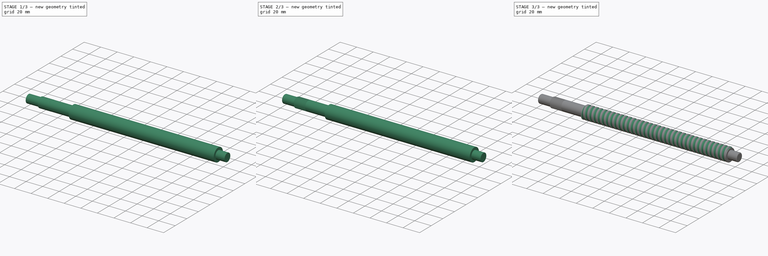
[diagram: build sequence overview — one tinted view per stage of 3, left to right]
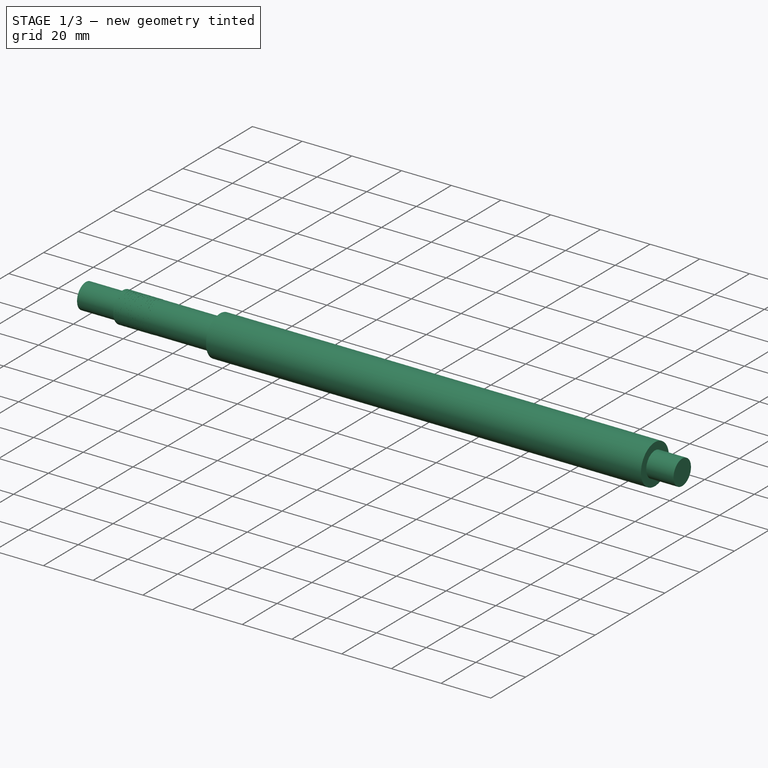
[diagram: stage 1 of 3 — iso view after this stage's code; geometry added in this stage tinted green]
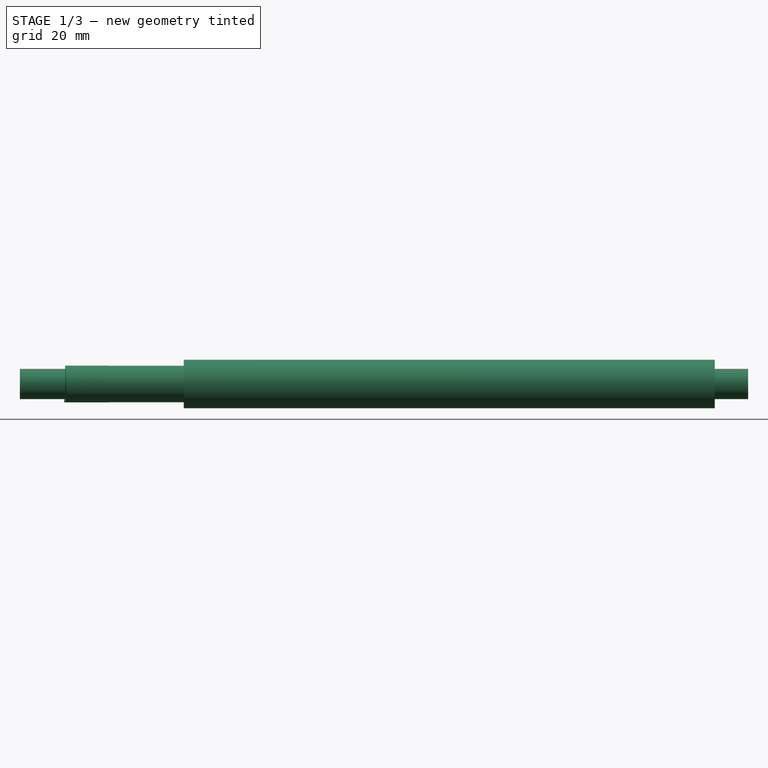
[diagram: stage 1 of 3 — front view after this stage's code; geometry added in this stage tinted green]
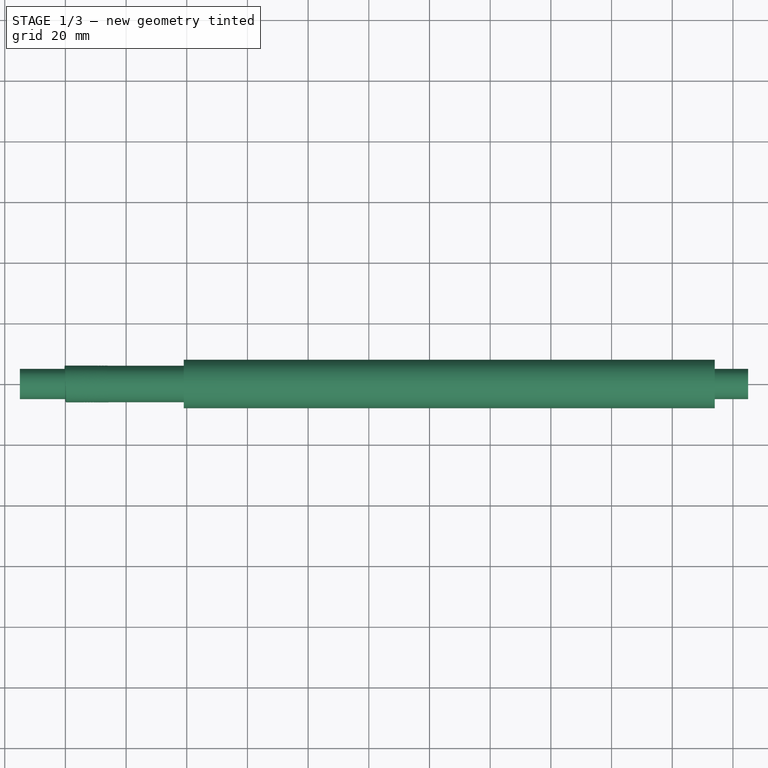
[diagram: stage 1 of 3 — top view after this stage's code; geometry added in this stage tinted green]
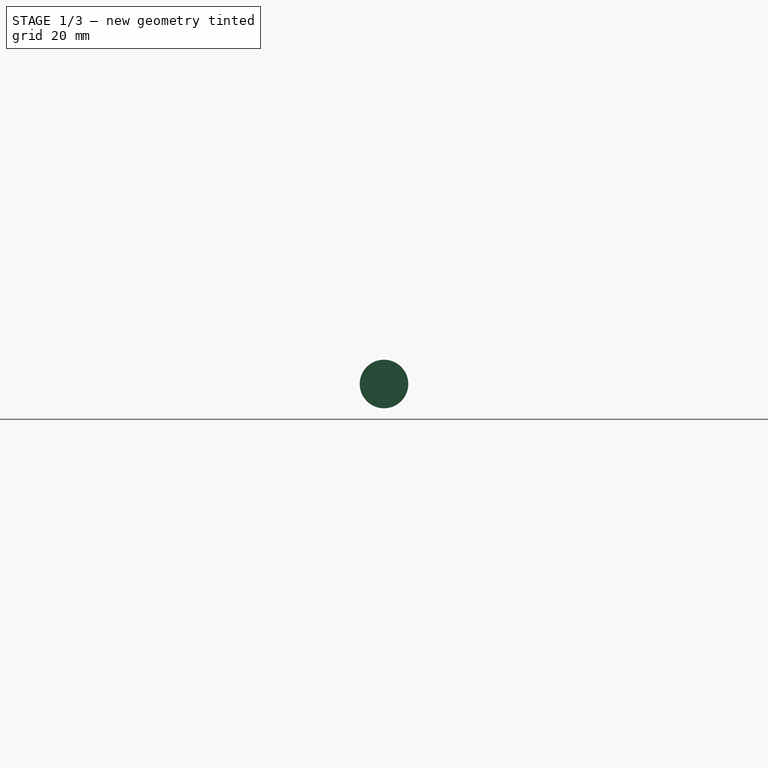
[diagram: stage 1 of 3 — right view after this stage's code; geometry added in this stage tinted green]
FCSTD DOCUMENT  (FreeCAD 0.16R5455 (Git))
Label: RM1605-ball-screw-240mm
License: CreativeCommons Attribution-ShareAlike
LicenseURL: http://creativecommons.org/licenses/by-sa/4.0/
objects: Sketcher::SketchObject×3, PartDesign::Fillet×3, Part::Feature×3, Part::Sweep×2, Part::Cut×2, PartDesign::Revolution×1
note: 15 computed .brp shape members not serialized (recipe doc carries the construction recipe); baked Part::Feature solids carry a one-line shape summary decoded from their .brp

FEATURE [Sketcher::SketchObject] Sketch
  Placement = pos=(-15,0,0) rot=(0,0,1;0rad)
  sketch-geometry (10):
    g0: LineSegment StartX=0 StartY=0 StartZ=0 EndX=0 EndY=5 EndZ=0
    g1: LineSegment StartX=0 StartY=5 StartZ=0 EndX=15 EndY=5 EndZ=0
    g2: LineSegment StartX=15 StartY=5 StartZ=0 EndX=15 EndY=6 EndZ=0
    g3: LineSegment StartX=15 StartY=6 StartZ=0 EndX=54 EndY=6 EndZ=0
    g4: LineSegment StartX=54 StartY=6 StartZ=0 EndX=54 EndY=8 EndZ=0
    g5: LineSegment StartX=54 StartY=8 StartZ=0 EndX=229 EndY=8 EndZ=0
    g6: LineSegment StartX=229 StartY=8 StartZ=0 EndX=229 EndY=5 EndZ=0
    g7: LineSegment StartX=229 StartY=5 StartZ=0 EndX=240 EndY=5 EndZ=0
    g8: LineSegment StartX=240 StartY=5 StartZ=0 EndX=240 EndY=0 EndZ=0
    g9: LineSegment StartX=240 StartY=0 StartZ=0 EndX=0 EndY=0 EndZ=0
  constraints (29):
    c: Coincident(g0,g1)
    c: Coincident(g1,g2)
    c: Coincident(g2,g3)
    c: Coincident(g3,g4)
    c: Coincident(g4,g5)
    c: Coincident(g5,g6)
    c: Coincident(g6,g7)
    c: Coincident(g7,g8)
    c: Coincident(g8,g9)
    c: Coincident(g9,g-1)
    c: Coincident(g0,g-1)
    c: Vertical(g0)
    c: Horizontal(g1)
    c: DistanceY(g-1,g0) = 5
    c: DistanceX(g0,g1) = 15
    c: Vertical(g2)
    c: Horizontal(g3)
    c: DistanceX(g3) = 39
    c: Vertical(g4)
    c: Horizontal(g5)
    c: DistanceY(g-1,g3) = 6
    c: Vertical(g8)
    c: Horizontal(g7)
    c: Vertical(g6)
    c: Horizontal(g9)
    c: DistanceY(g-1,g4) = 8
    c: DistanceX(g7) = 11
    c: DistanceY(g8) = -5
    c: DistanceX(g9) = -240
FEATURE [PartDesign::Revolution] Revolution
  Angle = 360
  Axis = (1,0,0)
  Base = (-15,0,0)
  Placement = pos=(-15,0,0) rot=(0,0,1;0rad)
  ReferenceAxis = -> Sketch [H_Axis]
  Sketch = -> Sketch
FEATURE [PartDesign::Fillet] Fillet
  Base = -> Revolution [Edge4]
  Placement = pos=(-15,0,0) rot=(0,0,1;0rad)
  Radius = 0.5
FEATURE [Sketcher::SketchObject] Sketch001
  Placement = pos=(0,0,0) rot=(1,0,0;1.5708rad)
  sketch-geometry (4):
    g0: LineSegment StartX=-0.125 StartY=-5.45 StartZ=0 EndX=-0.47141 EndY=-6.05 EndZ=0
    g1: LineSegment StartX=-0.47141 StartY=-6.05 StartZ=0 EndX=0.47141 EndY=-6.05 EndZ=0
    g2: LineSegment StartX=0.47141 StartY=-6.05 StartZ=0 EndX=0.125 EndY=-5.45 EndZ=0
    g3: LineSegment StartX=0.125 StartY=-5.45 StartZ=0 EndX=-0.125 EndY=-5.45 EndZ=0
  constraints (12):
    c: Coincident(g0,g1)
    c: Coincident(g1,g2)
    c: Coincident(g2,g3)
    c: Coincident(g0,g3)
    c: Horizontal(g3)
    c: Horizontal(g1)
    c: DistanceY(g-1,g0) = -5.45
    c: Symmetric(g0,g2,g-2)
    c: Symmetric(g0,g1,g-2)
    c: DistanceX(g3) = -0.25
    c: Angle(g0,g2) = 1.0472
    c: DistanceY(g0,g0) = -0.6
FEATURE [Part::Feature] Shape001  label="M12x1-14"
  Placement = pos=(0,0,0) rot=(0,1,0;1.5708rad)
  shape: bbox 14 x 10.9 x 10.9 mm, 0 faces, 0 solids (baked)
FEATURE [Part::Sweep] Sweep
  Frenet = true
  Sections = -> [Sketch001]
  Solid = true
  Spine = -> Shape001 [Edge1]
  Transition = 1
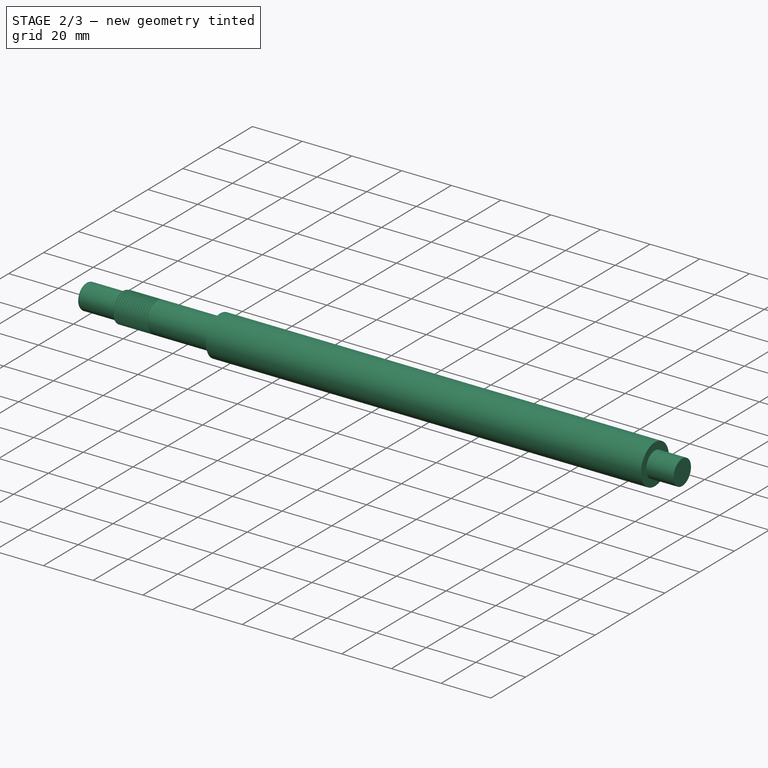
[diagram: stage 2 of 3 — iso view after this stage's code; geometry added in this stage tinted green]
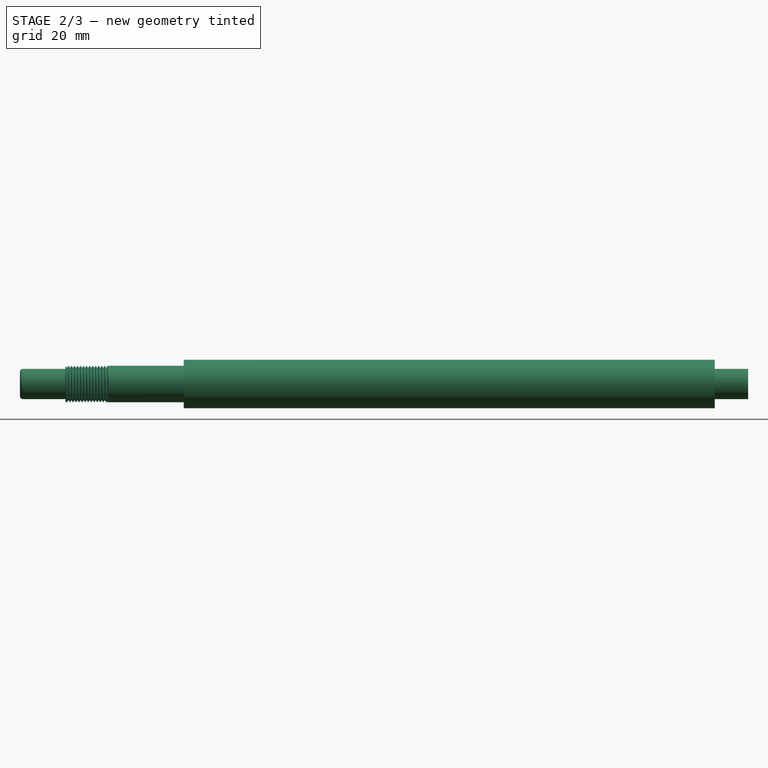
[diagram: stage 2 of 3 — front view after this stage's code; geometry added in this stage tinted green]
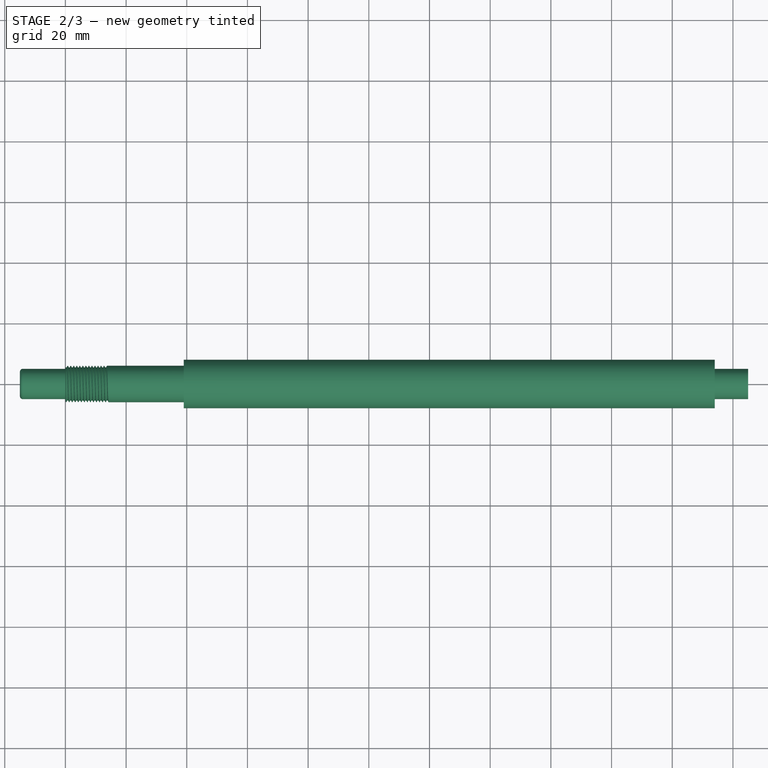
[diagram: stage 2 of 3 — top view after this stage's code; geometry added in this stage tinted green]
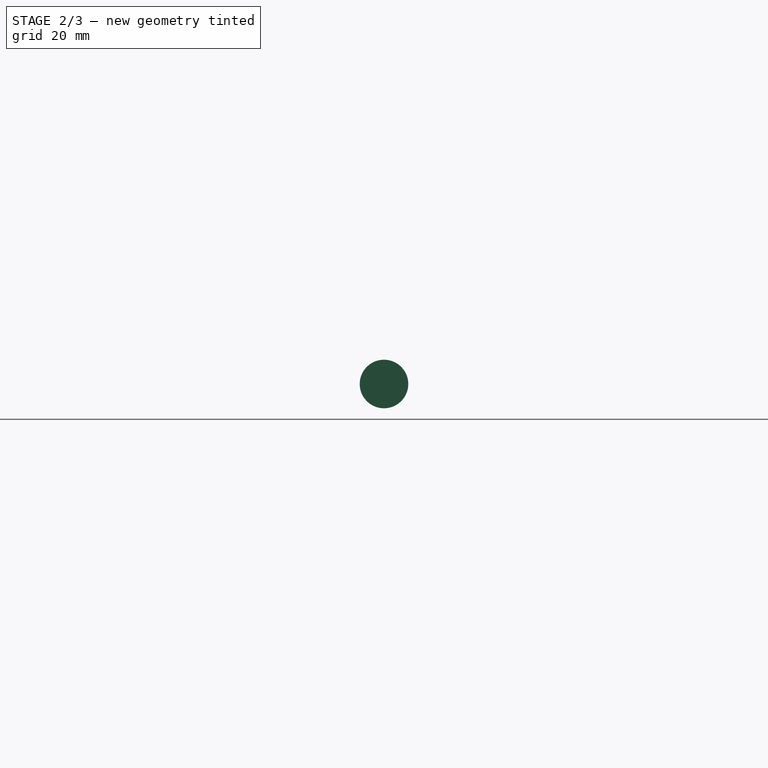
[diagram: stage 2 of 3 — right view after this stage's code; geometry added in this stage tinted green]
FEATURE [Part::Feature] Shape
  Placement = pos=(39,0,0) rot=(0,1,0;1.5708rad)
  shape: bbox 175 x 14.1 x 14.1 mm, 0 faces, 0 solids (baked)
FEATURE [Part::Cut] Cut
  Base = -> Fillet
  Tool = -> Sweep
FEATURE [PartDesign::Fillet] Fillet001
  Base = -> Cut [Edge33]
  Radius = 1
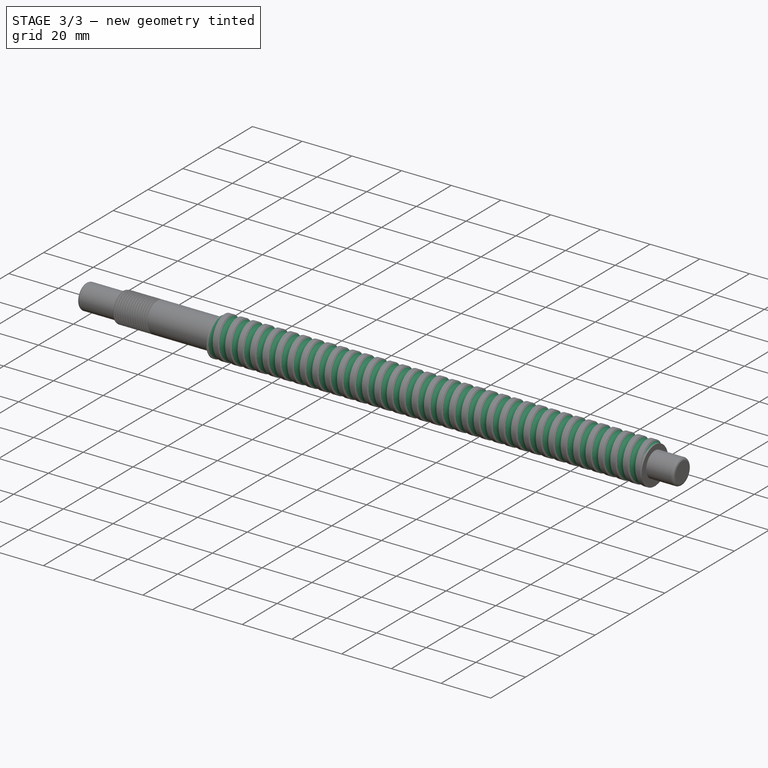
[diagram: stage 3 of 3 — iso view after this stage's code; geometry added in this stage tinted green]
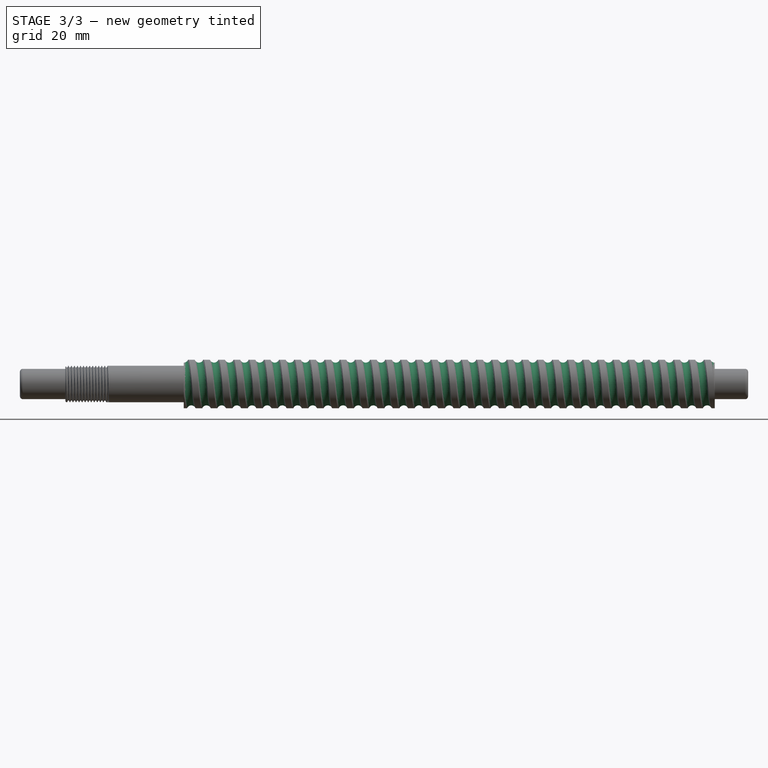
[diagram: stage 3 of 3 — front view after this stage's code; geometry added in this stage tinted green]
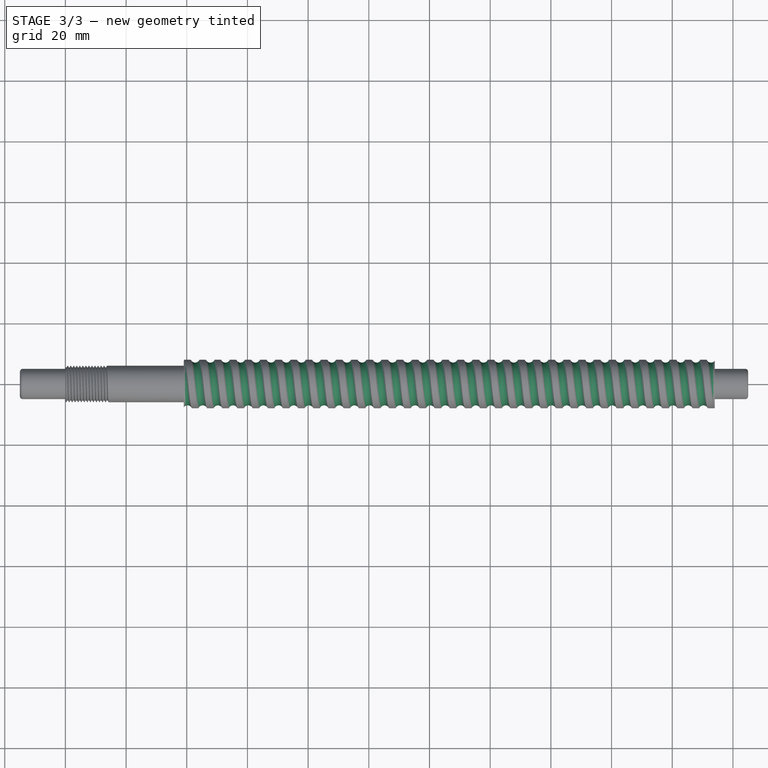
[diagram: stage 3 of 3 — top view after this stage's code; geometry added in this stage tinted green]
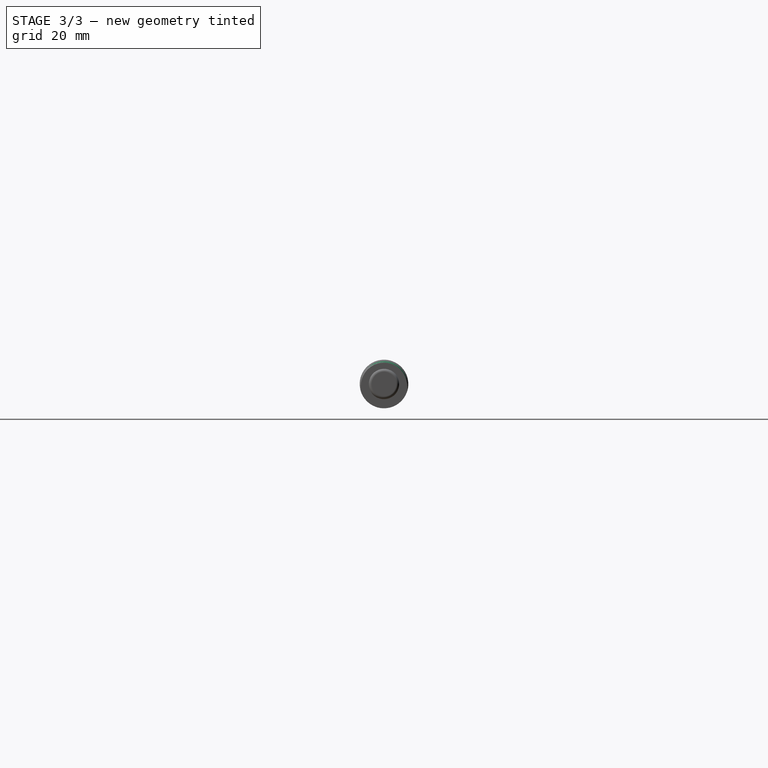
[diagram: stage 3 of 3 — right view after this stage's code; geometry added in this stage tinted green]
FEATURE [Part::Feature] Shape002
  Placement = pos=(36.5,0,0) rot=(0,1,0;1.5708rad)
  shape: bbox 180 x 14.1 x 14.1 mm, 0 faces, 0 solids (baked)
FEATURE [Sketcher::SketchObject] Sketch002
  Placement = pos=(0,0,0) rot=(1,0,0;1.5708rad)
  sketch-geometry (1):
    g0: Circle CenterX=36.5 CenterY=-8.68 CenterZ=0 NormalX=0 NormalY=0 NormalZ=1 Radius=1.63
  constraints (3):
    c: DistanceX(g-1,g0) = 36.5
    c: DistanceY(g-1,g0) = -8.68
    c: Radius(g0) = 1.63
FEATURE [Part::Sweep] Sweep001
  Frenet = true
  Sections = -> [Sketch002]
  Solid = true
  Spine = -> Shape002 [Edge1]
  Transition = 1
FEATURE [PartDesign::Fillet] Fillet002
  Base = -> Fillet001 [Edge73]
  Radius = 1
FEATURE [Part::Cut] Cut001
  Base = -> Fillet002
  Tool = -> Sweep001
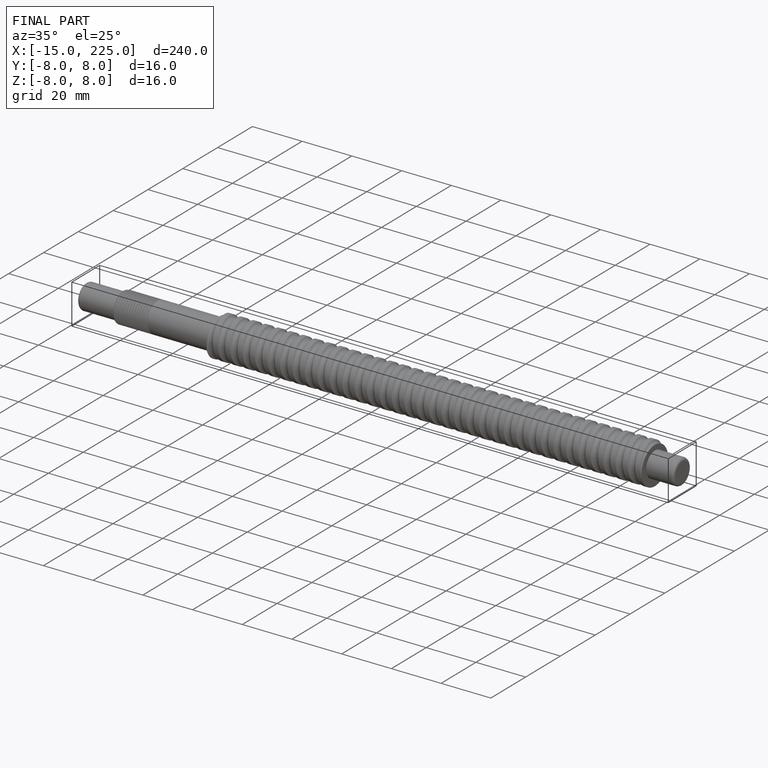
[diagram: finished part — iso view with bounding-box wireframe]
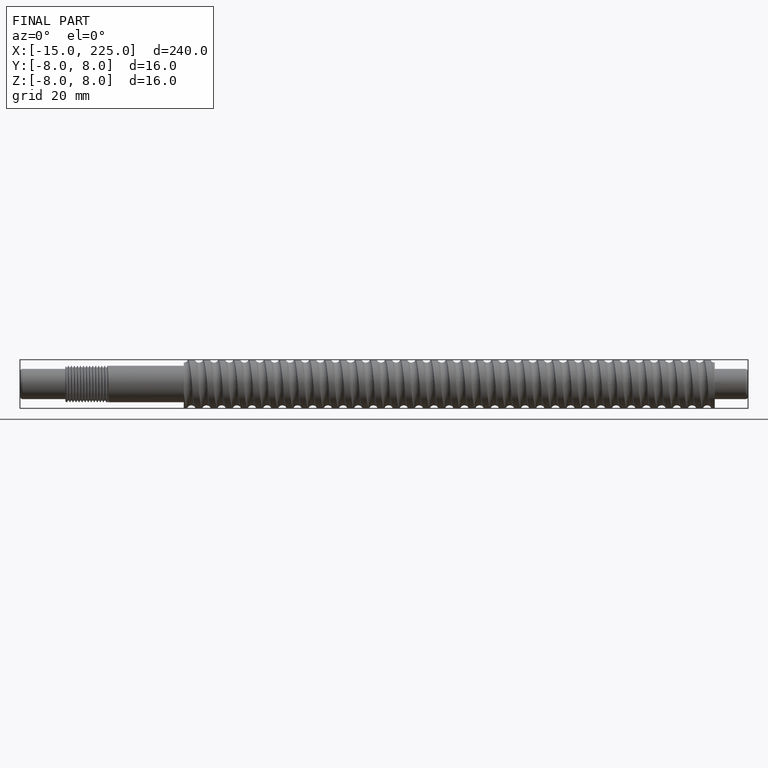
[diagram: finished part — front view with bounding-box wireframe]
